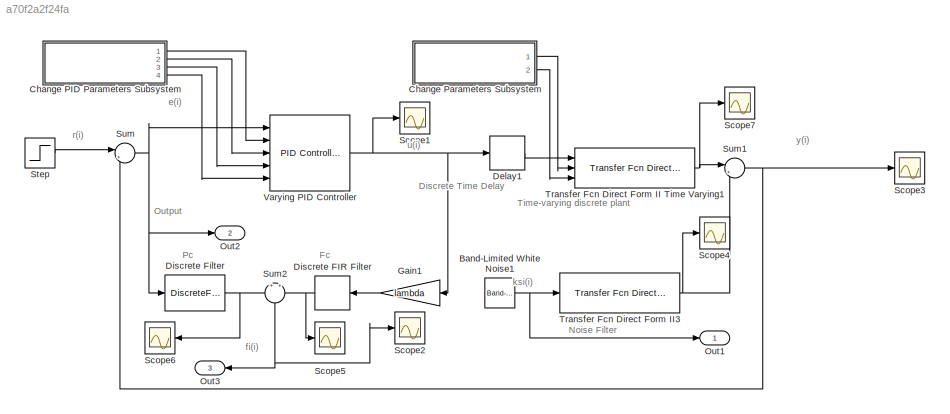
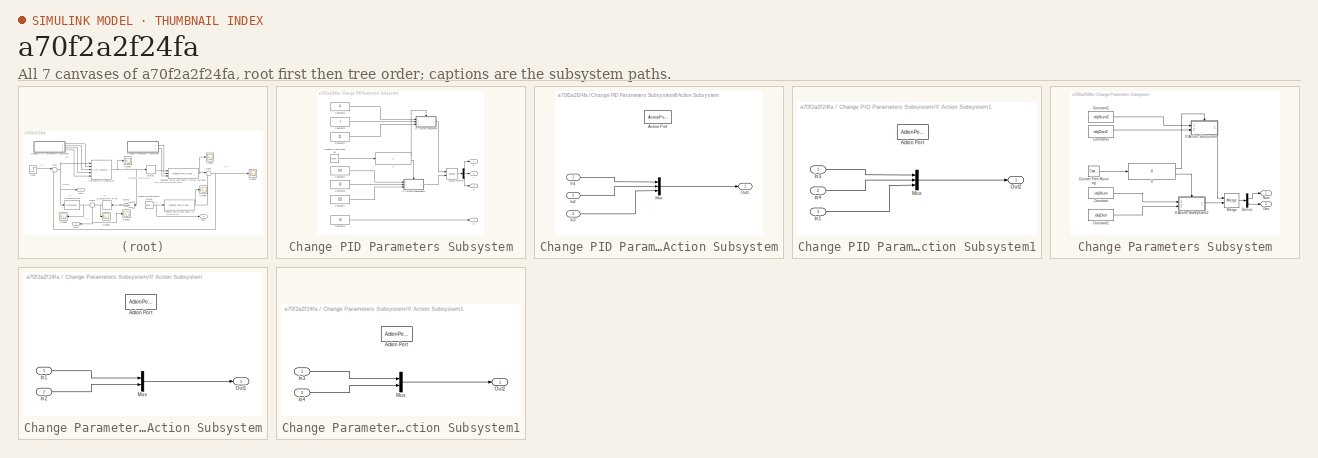
[diagram: thumbnail index - all 7 canvases of the model, root first then tree order]
MODEL slx_a70f2a2f24fa
KIND model
CONFIG AbsTol = auto
CONFIG EnableMultiTasking = off
CONFIG FixedStep = auto
CONFIG MaxStep = auto
CONFIG MinStep = auto
CONFIG RelTol = 1e-3
CONFIG SampleTimeConstraint = Unconstrained
CONFIG Solver = VariableStepAuto
CONFIG SolverName = VariableStepAuto
CONFIG StartTime = 0.0
CONFIG StopTime = SimulationTime
BLOCK [Reference] Band-Limited White Noise1  REF=simulink/Sources/Band-Limited
White Noise
  Ports = [0, 1]
  SourceBlock = simulink/Sources/Band-Limited\nWhite Noise
  SourceProductBaseCode = SL
  SourceProductName = Simulink
  SourceType = Band-Limited White Noise.
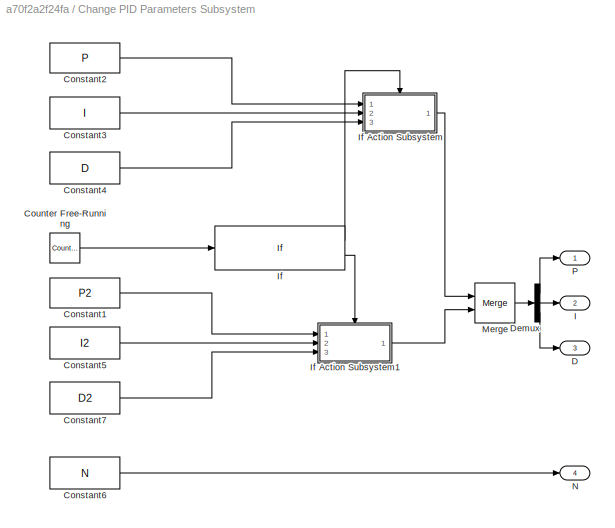
BLOCK [SubSystem] Change PID Parameters Subsystem
  Ports = [0, 4]
  RequestExecContextInheritance = off
BLOCK [Constant] Change PID Parameters Subsystem/Constant1
  Value = P2
BLOCK [Constant] Change PID Parameters Subsystem/Constant2
  Value = P
BLOCK [Constant] Change PID Parameters Subsystem/Constant3
  Value = I
BLOCK [Constant] Change PID Parameters Subsystem/Constant4
  Value = D
BLOCK [Constant] Change PID Parameters Subsystem/Constant5
  Value = I2
BLOCK [Constant] Change PID Parameters Subsystem/Constant6
  Value = N
BLOCK [Constant] Change PID Parameters Subsystem/Constant7
  Value = D2
BLOCK [Reference] Change PID Parameters Subsystem/Counter Free-Running  REF=simulink/Sources/Counter
Free-Running
  Ports = [0, 1]
  SourceBlock = simulink/Sources/Counter\nFree-Running
  SourceProductBaseCode = SL
  SourceProductName = Simulink
  SourceType = Counter Free-Running
BLOCK [Outport] Change PID Parameters Subsystem/D
  IconDisplay = Port number
  Port = 3
BLOCK [Demux] Change PID Parameters Subsystem/Demux
  DisplayOption = bar
  Outputs = 3
  Ports = [1, 3]
BLOCK [Outport] Change PID Parameters Subsystem/I
  IconDisplay = Port number
  Port = 2
BLOCK [If] Change PID Parameters Subsystem/If
  IfExpression = u1 < changeObjTime
  Ports = [1, 2]
BLOCK [SubSystem] Change PID Parameters Subsystem/If Action Subsystem
  Ports = [3, 1, 0, 0, 0, 0, 0, 1]
  RequestExecContextInheritance = off
  TreatAsAtomicUnit = on
BLOCK [ActionPort] Change PID Parameters Subsystem/If Action Subsystem/Action Port
  ActionPortLabel = if(u1 < changeObjTime)
BLOCK [Inport] Change PID Parameters Subsystem/If Action Subsystem/In1
  IconDisplay = Port number
BLOCK [Inport] Change PID Parameters Subsystem/If Action Subsystem/In2
  IconDisplay = Port number
  Port = 2
BLOCK [Inport] Change PID Parameters Subsystem/If Action Subsystem/In3
  IconDisplay = Port number
  Port = 3
BLOCK [Mux] Change PID Parameters Subsystem/If Action Subsystem/Mux
  DisplayOption = bar
  Inputs = 3
  Ports = [3, 1]
BLOCK [Outport] Change PID Parameters Subsystem/If Action Subsystem/Out1
  IconDisplay = Port number
BLOCK [SubSystem] Change PID Parameters Subsystem/If Action Subsystem1
  Ports = [3, 1, 0, 0, 0, 0, 0, 1]
  RequestExecContextInheritance = off
  TreatAsAtomicUnit = on
BLOCK [ActionPort] Change PID Parameters Subsystem/If Action Subsystem1/Action Port
  ActionPortLabel = else
BLOCK [Inport] Change PID Parameters Subsystem/If Action Subsystem1/In1
  IconDisplay = Port number
  Port = 3
BLOCK [Inport] Change PID Parameters Subsystem/If Action Subsystem1/In3
  IconDisplay = Port number
BLOCK [Inport] Change PID Parameters Subsystem/If Action Subsystem1/In4
  IconDisplay = Port number
  Port = 2
BLOCK [Mux] Change PID Parameters Subsystem/If Action Subsystem1/Mux
  DisplayOption = bar
  Inputs = 3
  Ports = [3, 1]
BLOCK [Outport] Change PID Parameters Subsystem/If Action Subsystem1/Out2
  IconDisplay = Port number
BLOCK [Merge] Change PID Parameters Subsystem/Merge
  Ports = [2, 1]
BLOCK [Outport] Change PID Parameters Subsystem/N
  IconDisplay = Port number
  Port = 4
BLOCK [Outport] Change PID Parameters Subsystem/P
  IconDisplay = Port number
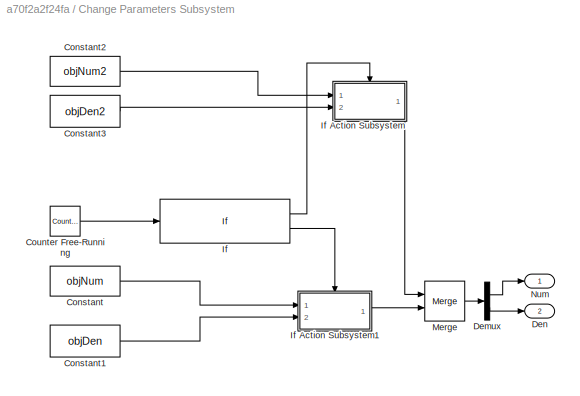
BLOCK [SubSystem] Change Parameters Subsystem
  Ports = [0, 2]
  RequestExecContextInheritance = off
BLOCK [Constant] Change Parameters Subsystem/Constant
  Value = objNum
BLOCK [Constant] Change Parameters Subsystem/Constant1
  Value = objDen
BLOCK [Constant] Change Parameters Subsystem/Constant2
  Value = objNum2
BLOCK [Constant] Change Parameters Subsystem/Constant3
  Value = objDen2
BLOCK [Reference] Change Parameters Subsystem/Counter Free-Running  REF=simulink/Sources/Counter
Free-Running
  Ports = [0, 1]
  SourceBlock = simulink/Sources/Counter\nFree-Running
  SourceProductBaseCode = SL
  SourceProductName = Simulink
  SourceType = Counter Free-Running
BLOCK [Demux] Change Parameters Subsystem/Demux
  DisplayOption = bar
  Outputs = 2
  Ports = [1, 2]
BLOCK [Outport] Change Parameters Subsystem/Den
  IconDisplay = Port number
  Port = 2
BLOCK [If] Change Parameters Subsystem/If
  IfExpression = u1 > changeObjTime
  Ports = [1, 2]
BLOCK [SubSystem] Change Parameters Subsystem/If Action Subsystem
  Ports = [2, 1, 0, 0, 0, 0, 0, 1]
  RequestExecContextInheritance = off
  TreatAsAtomicUnit = on
BLOCK [ActionPort] Change Parameters Subsystem/If Action Subsystem/Action Port
  ActionPortLabel = if(u1 > changeObjTime)
BLOCK [Inport] Change Parameters Subsystem/If Action Subsystem/In1
  IconDisplay = Port number
BLOCK [Inport] Change Parameters Subsystem/If Action Subsystem/In2
  IconDisplay = Port number
  Port = 2
BLOCK [Mux] Change Parameters Subsystem/If Action Subsystem/Mux
  DisplayOption = bar
  Inputs = 2
  Ports = [2, 1]
BLOCK [Outport] Change Parameters Subsystem/If Action Subsystem/Out1
  IconDisplay = Port number
BLOCK [SubSystem] Change Parameters Subsystem/If Action Subsystem1
  Ports = [2, 1, 0, 0, 0, 0, 0, 1]
  RequestExecContextInheritance = off
  TreatAsAtomicUnit = on
BLOCK [ActionPort] Change Parameters Subsystem/If Action Subsystem1/Action Port
  ActionPortLabel = else
BLOCK [Inport] Change Parameters Subsystem/If Action Subsystem1/In3
  IconDisplay = Port number
BLOCK [Inport] Change Parameters Subsystem/If Action Subsystem1/In4
  IconDisplay = Port number
  Port = 2
BLOCK [Mux] Change Parameters Subsystem/If Action Subsystem1/Mux
  DisplayOption = bar
  Inputs = 2
  Ports = [2, 1]
BLOCK [Outport] Change Parameters Subsystem/If Action Subsystem1/Out2
  IconDisplay = Port number
BLOCK [Merge] Change Parameters Subsystem/Merge
  Ports = [2, 1]
BLOCK [Outport] Change Parameters Subsystem/Num
  IconDisplay = Port number
BLOCK [Delay] Delay1
  DelayLength = kd
  InputPortMap = u0
  Ports = [1, 1]
BLOCK [DiscreteFir] Discrete FIR Filter
  Coefficients = [1]
  InputPortMap = u0
  OutputPortMap = o0
  Ports = [1, 1]
BLOCK [DiscreteFilter] Discrete Filter
  Denominator = [1]
  InputPortMap = u0
  Ports = [1, 1]
BLOCK [Gain] Gain1
  Gain = lambda
  OutDataTypeStr = Inherit: Inherit via internal rule
  ParamDataTypeStr = Inherit: Inherit via internal rule
  SaturateOnIntegerOverflow = off
BLOCK [Outport] Out1
  IconDisplay = Port number
BLOCK [Outport] Out2
  IconDisplay = Port number
  Port = 2
BLOCK [Outport] Out3
  IconDisplay = Port number
  Port = 3
BLOCK [Scope] Scope1
  Floating = off
  NumInputPorts = 1
  Ports = [1]
  ScopeSpecificationString = Simulink.scopes.TimeScopeBlockCfg('CurrentConfiguration', extmgr.ConfigurationSet(extmgr.Configuration('Core','General UI',true),extmgr.Configuration('Core','Source UI',true),extmgr.Configuration('Sources','WiredSimulink',true,'DataLoggingVariableName','ScopeData1'),extmgr.Configuration('Visuals','Time Domain',true,'SerializedDisplays',{struct('MinYLimReal','-1.99633','MaxYLimReal','5.29369','YLab...<+1449ch>
BLOCK [Scope] Scope2
  Floating = off
  NumInputPorts = 1
  Ports = [1]
  ScopeSpecificationString = Simulink.scopes.TimeScopeBlockCfg('CurrentConfiguration', extmgr.ConfigurationSet(extmgr.Configuration('Core','General UI',true),extmgr.Configuration('Core','Source UI',true),extmgr.Configuration('Sources','WiredSimulink',true,'DataLoggingVariableName','ScopeData1'),extmgr.Configuration('Visuals','Time Domain',true,'SerializedDisplays',{struct('MinYLimReal','-12.53137','MaxYLimReal','28.40574','YL...<+1400ch>
BLOCK [Scope] Scope3
  Floating = off
  NumInputPorts = 1
  Ports = [1]
  ScopeSpecificationString = Simulink.scopes.TimeScopeBlockCfg('CurrentConfiguration', extmgr.ConfigurationSet(extmgr.Configuration('Core','General UI',true),extmgr.Configuration('Core','Source UI',true),extmgr.Configuration('Sources','WiredSimulink',true,'DataLoggingVariableName','ScopeData2'),extmgr.Configuration('Visuals','Time Domain',true,'SerializedDisplays',{struct('MinYLimReal','-0.93777','MaxYLimReal','8.55267','YLab...<+1402ch>
BLOCK [Scope] Scope4
  Floating = off
  NumInputPorts = 1
  Ports = [1]
  ScopeSpecificationString = Simulink.scopes.TimeScopeBlockCfg('CurrentConfiguration', extmgr.ConfigurationSet(extmgr.Configuration('Core','General UI',true),extmgr.Configuration('Core','Source UI',true),extmgr.Configuration('Sources','WiredSimulink',true,'DataLoggingVariableName','ScopeData3'),extmgr.Configuration('Visuals','Time Domain',true,'SerializedDisplays',{struct('MinYLimReal','-0.17797','MaxYLimReal','0.19534','YLab...<+1418ch>
BLOCK [Scope] Scope5
  Floating = off
  NumInputPorts = 1
  Ports = [1]
  ScopeSpecificationString = Simulink.scopes.TimeScopeBlockCfg('CurrentConfiguration', extmgr.ConfigurationSet(extmgr.Configuration('Core','General UI',true),extmgr.Configuration('Core','Source UI',true),extmgr.Configuration('Sources','WiredSimulink',true,'DataLoggingVariableName','ScopeData2'),extmgr.Configuration('Visuals','Time Domain',true,'SerializedDisplays',{struct('MinYLimReal','-9.98164','MaxYLimReal','26.46843','YLa...<+1413ch>
BLOCK [Scope] Scope6
  Floating = off
  NumInputPorts = 1
  Ports = [1]
  ScopeSpecificationString = Simulink.scopes.TimeScopeBlockCfg('CurrentConfiguration', extmgr.ConfigurationSet(extmgr.Configuration('Core','General UI',true),extmgr.Configuration('Core','Source UI',true),extmgr.Configuration('Sources','WiredSimulink',true,'DataLoggingVariableName','ScopeData3'),extmgr.Configuration('Visuals','Time Domain',true,'SerializedDisplays',{struct('MinYLimReal','-3.55267','MaxYLimReal','5.93777','YLab...<+1405ch>
BLOCK [Scope] Scope7
  Floating = off
  NumInputPorts = 1
  Ports = [1]
  ScopeSpecificationString = Simulink.scopes.TimeScopeBlockCfg('CurrentConfiguration', extmgr.ConfigurationSet(extmgr.Configuration('Core','General UI',true),extmgr.Configuration('Core','Source UI',true),extmgr.Configuration('Sources','WiredSimulink',true,'DataLoggingVariableName','ScopeData4'),extmgr.Configuration('Visuals','Time Domain',true,'SerializedDisplays',{struct('MinYLimReal','-0.94218','MaxYLimReal','8.47964','YLab...<+1468ch>
BLOCK [Step] Step
  After = RegulatedValue
  SampleTime = SampleTime
  Time = 0
BLOCK [Sum] Sum
  IconShape = round
  InputSameDT = off
  Inputs = |+-
  OutDataTypeStr = Inherit: Inherit via internal rule
  Ports = [2, 1]
  SaturateOnIntegerOverflow = off
BLOCK [Sum] Sum1
  IconShape = round
  InputSameDT = off
  Inputs = |++
  OutDataTypeStr = Inherit: Inherit via internal rule
  Ports = [2, 1]
  SaturateOnIntegerOverflow = off
BLOCK [Sum] Sum2
  IconShape = round
  InputSameDT = off
  Inputs = +|+
  OutDataTypeStr = Inherit: Inherit via internal rule
  Ports = [2, 1]
  SaturateOnIntegerOverflow = off
BLOCK [Reference] Transfer Fcn Direct Form II Time Varying1  REF=simulink/Additional Math
& Discrete/Additional
Discrete/Transfer Fcn
Direct Form II
Time Varying
  Ports = [3, 1]
  SourceBlock = simulink/Additional Math\n& Discrete/Additional\nDiscrete/Transfer Fcn\nDirect Form II\nTime Varying
  SourceProductBaseCode = SL
  SourceProductName = Simulink
  SourceType = Transfer Fcn Direct Form II Time Varying
BLOCK [Reference] Transfer Fcn Direct Form II3  REF=simulink/Additional Math
& Discrete/Additional
Discrete/Transfer Fcn
Direct Form II
  Ports = [1, 1]
  SourceBlock = simulink/Additional Math\n& Discrete/Additional\nDiscrete/Transfer Fcn\nDirect Form II
  SourceProductBaseCode = SL
  SourceProductName = Simulink
  SourceType = Transfer Fcn Direct Form II
BLOCK [Reference] Varying PID Controller  REF=simulink/Continuous/PID Controller
  Ports = [5, 1]
  SourceBlock = simulink/Continuous/PID Controller
  SourceProductBaseCode = SL
  SourceProductName = Simulink
  SourceType = PID 1dof
ANNOTATION (root): Discrete Time Delay
ANNOTATION (root): Fc
ANNOTATION (root): Noise Filter
ANNOTATION (root): Output
ANNOTATION (root): Pc
ANNOTATION (root): Time-varying discrete plant
ANNOTATION (root): e(i)
ANNOTATION (root): fi(i)
ANNOTATION (root): ksi(i)
ANNOTATION (root): r(i)
ANNOTATION (root): u(i)
ANNOTATION (root): y(i)
NET Band-Limited White Noise1:1 -> Out1:1, Transfer Fcn Direct Form II3:1
LINE Change PID Parameters Subsystem/Constant1:1 -> Change PID Parameters Subsystem/If Action Subsystem1:1
LINE Change PID Parameters Subsystem/Constant2:1 -> Change PID Parameters Subsystem/If Action Subsystem:1
LINE Change PID Parameters Subsystem/Constant3:1 -> Change PID Parameters Subsystem/If Action Subsystem:2
LINE Change PID Parameters Subsystem/Constant4:1 -> Change PID Parameters Subsystem/If Action Subsystem:3
LINE Change PID Parameters Subsystem/Constant5:1 -> Change PID Parameters Subsystem/If Action Subsystem1:2
LINE Change PID Parameters Subsystem/Constant6:1 -> Change PID Parameters Subsystem/N:1
LINE Change PID Parameters Subsystem/Constant7:1 -> Change PID Parameters Subsystem/If Action Subsystem1:3
LINE Change PID Parameters Subsystem/Counter Free-Running:1 -> Change PID Parameters Subsystem/If:1
LINE Change PID Parameters Subsystem/Demux:1 -> Change PID Parameters Subsystem/P:1
LINE Change PID Parameters Subsystem/Demux:2 -> Change PID Parameters Subsystem/I:1
LINE Change PID Parameters Subsystem/Demux:3 -> Change PID Parameters Subsystem/D:1
LINE Change PID Parameters Subsystem/If Action Subsystem/In1:1 -> Change PID Parameters Subsystem/If Action Subsystem/Mux:1
LINE Change PID Parameters Subsystem/If Action Subsystem/In2:1 -> Change PID Parameters Subsystem/If Action Subsystem/Mux:2
LINE Change PID Parameters Subsystem/If Action Subsystem/In3:1 -> Change PID Parameters Subsystem/If Action Subsystem/Mux:3
LINE Change PID Parameters Subsystem/If Action Subsystem/Mux:1 -> Change PID Parameters Subsystem/If Action Subsystem/Out1:1
LINE Change PID Parameters Subsystem/If Action Subsystem1/In1:1 -> Change PID Parameters Subsystem/If Action Subsystem1/Mux:3
LINE Change PID Parameters Subsystem/If Action Subsystem1/In3:1 -> Change PID Parameters Subsystem/If Action Subsystem1/Mux:1
LINE Change PID Parameters Subsystem/If Action Subsystem1/In4:1 -> Change PID Parameters Subsystem/If Action Subsystem1/Mux:2
LINE Change PID Parameters Subsystem/If Action Subsystem1/Mux:1 -> Change PID Parameters Subsystem/If Action Subsystem1/Out2:1
LINE Change PID Parameters Subsystem/If Action Subsystem1:1 -> Change PID Parameters Subsystem/Merge:2
LINE Change PID Parameters Subsystem/If Action Subsystem:1 -> Change PID Parameters Subsystem/Merge:1
LINE Change PID Parameters Subsystem/If:1 -> Change PID Parameters Subsystem/If Action Subsystem:ifaction
LINE Change PID Parameters Subsystem/If:2 -> Change PID Parameters Subsystem/If Action Subsystem1:ifaction
LINE Change PID Parameters Subsystem/Merge:1 -> Change PID Parameters Subsystem/Demux:1
LINE Change PID Parameters Subsystem:1 -> Varying PID Controller:2
LINE Change PID Parameters Subsystem:2 -> Varying PID Controller:3
LINE Change PID Parameters Subsystem:3 -> Varying PID Controller:4
LINE Change PID Parameters Subsystem:4 -> Varying PID Controller:5
LINE Change Parameters Subsystem/Constant1:1 -> Change Parameters Subsystem/If Action Subsystem1:2
LINE Change Parameters Subsystem/Constant2:1 -> Change Parameters Subsystem/If Action Subsystem:1
LINE Change Parameters Subsystem/Constant3:1 -> Change Parameters Subsystem/If Action Subsystem:2
LINE Change Parameters Subsystem/Constant:1 -> Change Parameters Subsystem/If Action Subsystem1:1
LINE Change Parameters Subsystem/Counter Free-Running:1 -> Change Parameters Subsystem/If:1
LINE Change Parameters Subsystem/Demux:1 -> Change Parameters Subsystem/Num:1
LINE Change Parameters Subsystem/Demux:2 -> Change Parameters Subsystem/Den:1
LINE Change Parameters Subsystem/If Action Subsystem/In1:1 -> Change Parameters Subsystem/If Action Subsystem/Mux:1
LINE Change Parameters Subsystem/If Action Subsystem/In2:1 -> Change Parameters Subsystem/If Action Subsystem/Mux:2
LINE Change Parameters Subsystem/If Action Subsystem/Mux:1 -> Change Parameters Subsystem/If Action Subsystem/Out1:1
LINE Change Parameters Subsystem/If Action Subsystem1/In3:1 -> Change Parameters Subsystem/If Action Subsystem1/Mux:1
LINE Change Parameters Subsystem/If Action Subsystem1/In4:1 -> Change Parameters Subsystem/If Action Subsystem1/Mux:2
LINE Change Parameters Subsystem/If Action Subsystem1/Mux:1 -> Change Parameters Subsystem/If Action Subsystem1/Out2:1
LINE Change Parameters Subsystem/If Action Subsystem1:1 -> Change Parameters Subsystem/Merge:2
LINE Change Parameters Subsystem/If Action Subsystem:1 -> Change Parameters Subsystem/Merge:1
LINE Change Parameters Subsystem/If:1 -> Change Parameters Subsystem/If Action Subsystem:ifaction
LINE Change Parameters Subsystem/If:2 -> Change Parameters Subsystem/If Action Subsystem1:ifaction
LINE Change Parameters Subsystem/Merge:1 -> Change Parameters Subsystem/Demux:1
LINE Change Parameters Subsystem:1 -> Transfer Fcn Direct Form II Time Varying1:2
LINE Change Parameters Subsystem:2 -> Transfer Fcn Direct Form II Time Varying1:3
LINE Delay1:1 -> Transfer Fcn Direct Form II Time Varying1:1
NET Discrete FIR Filter:1 -> Scope5:1, Sum2:2
NET Discrete Filter:1 -> Scope6:1, Sum2:1
LINE Gain1:1 -> Discrete FIR Filter:1
LINE Step:1 -> Sum:1
NET Sum1:1 -> Scope3:1, Sum:2
NET Sum2:1 -> Out3:1, Scope2:1
NET Sum:1 -> Discrete Filter:1, Out2:1, Varying PID Controller:1
NET Transfer Fcn Direct Form II Time Varying1:1 -> Scope7:1, Sum1:1
NET Transfer Fcn Direct Form II3:1 -> Scope4:1, Sum1:2
NET Varying PID Controller:1 -> Delay1:1, Gain1:1, Scope1:1
note: NET lines group one-source signal fan-out (src -> all destinations, sorted); 1:1 wires keep LINE
